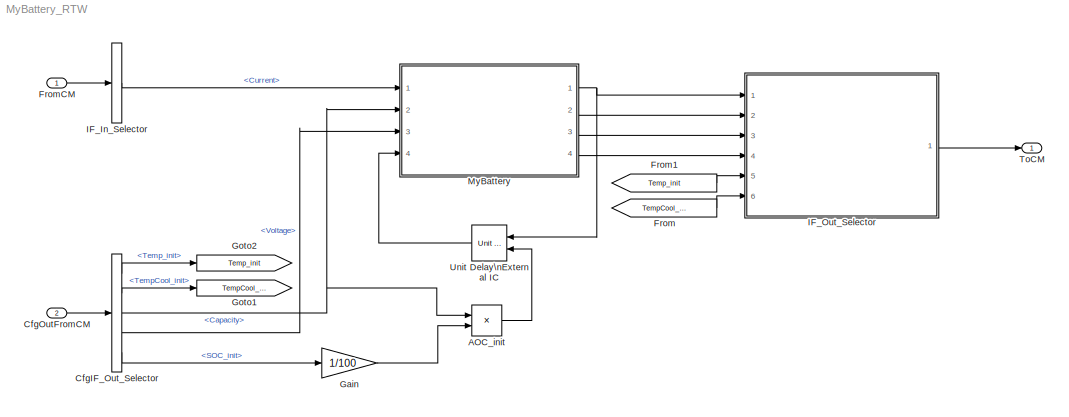
MODEL MyBattery_RTW
KIND model
CONFIG InitFcn = vehicle = 'Car'; if ~length(which('cmself')), cmenv; end\nMyBattery_RTW_bus
CONFIG PreLoadFcn = vehicle = 'Car'; if ~length(which('cmself')), cmenv; end\nMyBattery_RTW_bus
BLOCK [Product] AOC_init
  Ports = [2, 1]
  RndMeth = Zero
  SID = 18
BLOCK [BusSelector] CfgIF_Out_Selector
  OutputSignals = Temp_init,TempCool_init,Capacity,Voltage,SOC_init
  Ports = [1, 5]
  SID = 19
BLOCK [Inport] CfgOutFromCM
  OutDataTypeStr = Bus: cmPTBatteryCfgOut
  Port = 2
  SID = 8
BLOCK [From] From
  GotoTag = TempCool_init
  SID = 20
BLOCK [From] From1
  GotoTag = Temp_init
  SID = 21
BLOCK [Inport] FromCM
  OutDataTypeStr = Bus: cmPTBatteryIn
  SID = 1
BLOCK [Gain] Gain
  Gain = 1/100
  SID = 22
BLOCK [Goto] Goto1
  GotoTag = TempCool_init
  SID = 23
BLOCK [Goto] Goto2
  GotoTag = Temp_init
  SID = 24
BLOCK [BusSelector] IF_In_Selector
  OutputSignals = Current
  Ports = [1, 1]
  SID = 25
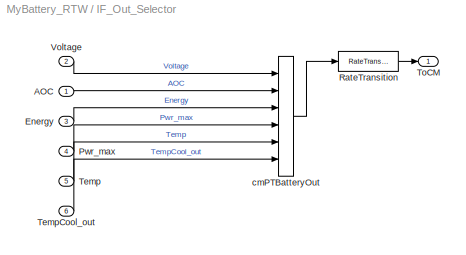
BLOCK [SubSystem] IF_Out_Selector
  OpenFcn = cmSignalSelect('SignalSelection_CB',gcb)
  Ports = [6, 1]
  RequestExecContextInheritance = off
  SID = 5
  UserData = DataTag0
  UserDataPersistent = on
BLOCK [Inport] IF_Out_Selector/AOC
  SID = 56
BLOCK [Inport] IF_Out_Selector/Energy
  Port = 3
  SID = 58
BLOCK [Inport] IF_Out_Selector/Pwr_max
  Port = 4
  SID = 59
BLOCK [RateTransition] IF_Out_Selector/RateTransition
  OutPortSampleTime = str2num(get_param(bdroot,'FixedStep'))
  SID = 6
BLOCK [Inport] IF_Out_Selector/Temp
  Port = 5
  SID = 60
BLOCK [Inport] IF_Out_Selector/TempCool_out
  Port = 6
  SID = 61
BLOCK [Outport] IF_Out_Selector/ToCM
  SID = 7
BLOCK [Inport] IF_Out_Selector/Voltage
  Port = 2
  SID = 57
BLOCK [BusCreator] IF_Out_Selector/cmPTBatteryOut
  InheritFromInputs = on
  Inputs = 6
  Ports = [6, 1]
  SID = 11
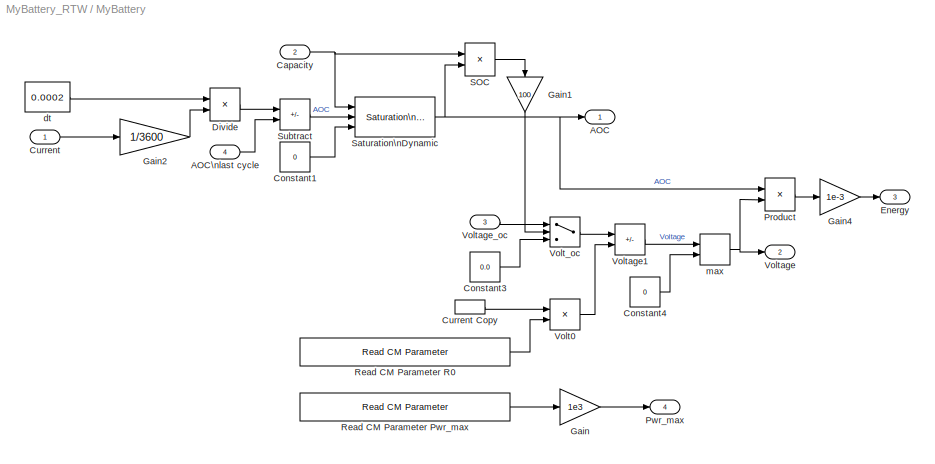
BLOCK [SubSystem] MyBattery
  Ports = [4, 4]
  RequestExecContextInheritance = off
  SID = 26
BLOCK [Outport] MyBattery/AOC
  SID = 51
  VectorParamsAs1DForOutWhenUnconnected = off
BLOCK [Inport] MyBattery/AOC\nlast cycle
  Port = 4
  SID = 30
BLOCK [Inport] MyBattery/Capacity
  Port = 2
  SID = 28
BLOCK [Constant] MyBattery/Constant1
  SID = 31
  Value = 0
BLOCK [Constant] MyBattery/Constant3
  SID = 32
  Value = 0.0
BLOCK [Constant] MyBattery/Constant4
  SID = 33
  Value = 0
BLOCK [Inport] MyBattery/Current
  SID = 27
BLOCK [InportShadow] MyBattery/Current Copy
  SID = 34
BLOCK [Product] MyBattery/Divide
  Inputs = **
  Ports = [2, 1]
  SID = 35
BLOCK [Outport] MyBattery/Energy
  Port = 3
  SID = 53
  VectorParamsAs1DForOutWhenUnconnected = off
BLOCK [Gain] MyBattery/Gain
  Gain = 1e3
  SID = 36
BLOCK [Gain] MyBattery/Gain1
  Gain = 100
  NameLocation = left
  SID = 37
BLOCK [Gain] MyBattery/Gain2
  Gain = 1/3600
  NameLocation = top
  SID = 38
BLOCK [Gain] MyBattery/Gain4
  Gain = 1e-3
  SID = 39
BLOCK [Product] MyBattery/Product
  Ports = [2, 1]
  RndMeth = Zero
  SID = 40
BLOCK [Outport] MyBattery/Pwr_max
  Port = 4
  SID = 54
  VectorParamsAs1DForOutWhenUnconnected = off
BLOCK [Reference] MyBattery/Read CM Parameter Pwr_max  REF=CarMaker4SL/Read CM Parameter
  MultiThreadCoSim = auto
  Ports = [0, 1]
  SID = 41
  SourceBlock = CarMaker4SL/Read CM Parameter
  SourceProductName = CarMaker4SL
  SourceType = Read CarMaker Infofile Parameter
  xdefaults = 100
  xfile = Vehicle
  xkey = PowerTrain.PowerSupply.BattLV.Pwr_max
  xmuxed = on
  xnout = 1
  xstime = Continuous
BLOCK [Reference] MyBattery/Read CM Parameter R0  REF=CarMaker4SL/Read CM Parameter
  MultiThreadCoSim = auto
  Ports = [0, 1]
  SID = 42
  SourceBlock = CarMaker4SL/Read CM Parameter
  SourceProductName = CarMaker4SL
  SourceType = Read CarMaker Infofile Parameter
  xdefaults = 0.0012
  xfile = Vehicle
  xkey = PowerTrain.PowerSupply.BattLV.R0
  xmuxed = on
  xnout = 1
  xstime = Continuous
BLOCK [Product] MyBattery/SOC
  Inputs = /*
  Ports = [2, 1]
  SID = 43
BLOCK [Reference] MyBattery/Saturation\nDynamic  REF=simulink/Discontinuities/Saturation\nDynamic
  DoSatur = off
  LockScale = off
  OutDataType = sfix(16)
  OutDataTypeStr = Inherit: Same as second input
  OutMax = []
  OutMin = []
  OutScaling = 2^-10
  OutputDataTypeScalingMode = Same as second input
  Ports = [3, 1]
  RTWMemSecDataConstants = Inherit from model
  RTWMemSecDataInternal = Inherit from model
  RTWMemSecDataParameters = Inherit from model
  RTWMemSecFuncExecute = Inherit from model
  RTWMemSecFuncInitTerm = Inherit from model
  RndMeth = Floor
  SID = 44
  SourceBlock = simulink/Discontinuities/Saturation\nDynamic
  SourceProductBaseCode = SL
  SourceType = Saturation Dynamic
BLOCK [Sum] MyBattery/Subtract
  IconShape = rectangular
  Inputs = -+
  Ports = [2, 1]
  SID = 45
BLOCK [Product] MyBattery/Volt0
  Ports = [2, 1]
  RndMeth = Zero
  SID = 46
BLOCK [Switch] MyBattery/Volt_oc
  Criteria = u2 > Threshold
  InputSameDT = off
  SID = 47
  SaturateOnIntegerOverflow = off
  Threshold = 1e-2
BLOCK [Outport] MyBattery/Voltage
  Port = 2
  SID = 52
  VectorParamsAs1DForOutWhenUnconnected = off
BLOCK [Sum] MyBattery/Voltage1
  IconShape = rectangular
  Inputs = +-
  Ports = [2, 1]
  SID = 48
BLOCK [Inport] MyBattery/Voltage_oc
  Port = 3
  SID = 29
BLOCK [Constant] MyBattery/dt
  SID = 49
  Value = 0.0002
BLOCK [MinMax] MyBattery/max
  Function = max
  Inputs = 2
  Ports = [2, 1]
  SID = 50
BLOCK [Outport] ToCM
  OutDataTypeStr = Bus: cmPTBatteryOut
  SID = 4
BLOCK [Reference] Unit Delay\nExternal IC  REF=simulink_need_slupdate/Unit Delay\nExternal IC
  Ports = [2, 1]
  RTWMemSecDataConstants = Inherit from model
  RTWMemSecDataInternal = Inherit from model
  RTWMemSecDataParameters = Inherit from model
  RTWMemSecFuncExecute = Inherit from model
  RTWMemSecFuncInitTerm = Inherit from model
  SID = 55
  SourceBlock = simulink_need_slupdate/Unit Delay\nExternal IC
  SourceProductBaseCode = SL
  SourceType = Unit Delay External Initial Condition
  tsamp = -1
LINE AOC_init:1 -> Unit Delay\nExternal IC:2
LINE CfgIF_Out_Selector:1 -> Goto2:1
LINE CfgIF_Out_Selector:2 -> Goto1:1
NET CfgIF_Out_Selector:3 -> AOC_init:1, MyBattery:2
LINE CfgIF_Out_Selector:4 -> MyBattery:3
LINE CfgIF_Out_Selector:5 -> Gain:1
LINE CfgOutFromCM:1 -> CfgIF_Out_Selector:1
LINE From1:1 -> IF_Out_Selector:5
LINE From:1 -> IF_Out_Selector:6
LINE FromCM:1 -> IF_In_Selector:1
LINE Gain:1 -> AOC_init:2
LINE IF_In_Selector:1 -> MyBattery:1
LINE IF_Out_Selector/AOC:1 -> IF_Out_Selector/cmPTBatteryOut:2
LINE IF_Out_Selector/Energy:1 -> IF_Out_Selector/cmPTBatteryOut:3
LINE IF_Out_Selector/Pwr_max:1 -> IF_Out_Selector/cmPTBatteryOut:4
LINE IF_Out_Selector/RateTransition:1 -> IF_Out_Selector/ToCM:1
LINE IF_Out_Selector/Temp:1 -> IF_Out_Selector/cmPTBatteryOut:5
LINE IF_Out_Selector/TempCool_out:1 -> IF_Out_Selector/cmPTBatteryOut:6
LINE IF_Out_Selector/Voltage:1 -> IF_Out_Selector/cmPTBatteryOut:1
LINE IF_Out_Selector/cmPTBatteryOut:1 -> IF_Out_Selector/RateTransition:1
LINE IF_Out_Selector:1 -> ToCM:1
LINE MyBattery/AOC\nlast cycle:1 -> MyBattery/Subtract:2
NET MyBattery/Capacity:1 -> MyBattery/SOC:1, MyBattery/Saturation\nDynamic:1
LINE MyBattery/Constant1:1 -> MyBattery/Saturation\nDynamic:3
LINE MyBattery/Constant3:1 -> MyBattery/Volt_oc:3
LINE MyBattery/Constant4:1 -> MyBattery/max:2
LINE MyBattery/Current Copy:1 -> MyBattery/Volt0:1
LINE MyBattery/Current:1 -> MyBattery/Gain2:1
LINE MyBattery/Divide:1 -> MyBattery/Subtract:1
LINE MyBattery/Gain1:1 -> MyBattery/Volt_oc:2
LINE MyBattery/Gain2:1 -> MyBattery/Divide:2
LINE MyBattery/Gain4:1 -> MyBattery/Energy:1
LINE MyBattery/Gain:1 -> MyBattery/Pwr_max:1
LINE MyBattery/Product:1 -> MyBattery/Gain4:1
LINE MyBattery/Read CM Parameter Pwr_max:1 -> MyBattery/Gain:1
LINE MyBattery/Read CM Parameter R0:1 -> MyBattery/Volt0:2
LINE MyBattery/SOC:1 -> MyBattery/Gain1:1
NET MyBattery/Saturation\nDynamic:1 -> MyBattery/AOC:1, MyBattery/Product:1, MyBattery/SOC:2
LINE MyBattery/Subtract:1 -> MyBattery/Saturation\nDynamic:2
LINE MyBattery/Volt0:1 -> MyBattery/Voltage1:2
LINE MyBattery/Volt_oc:1 -> MyBattery/Voltage1:1
LINE MyBattery/Voltage1:1 -> MyBattery/max:1
LINE MyBattery/Voltage_oc:1 -> MyBattery/Volt_oc:1
LINE MyBattery/dt:1 -> MyBattery/Divide:1
NET MyBattery/max:1 -> MyBattery/Product:2, MyBattery/Voltage:1
NET MyBattery:1 -> IF_Out_Selector:1, Unit Delay\nExternal IC:1
LINE MyBattery:2 -> IF_Out_Selector:2
LINE MyBattery:3 -> IF_Out_Selector:3
LINE MyBattery:4 -> IF_Out_Selector:4
LINE Unit Delay\nExternal IC:1 -> MyBattery:4
note: NET lines group one-source signal fan-out (src -> all destinations, sorted); 1:1 wires keep LINE
